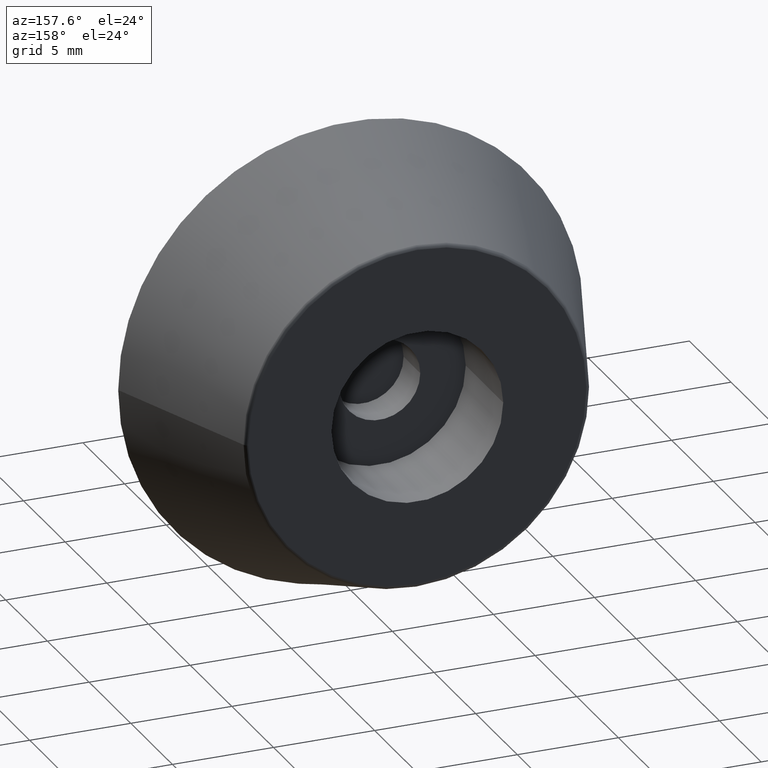
[diagram: clean part render]
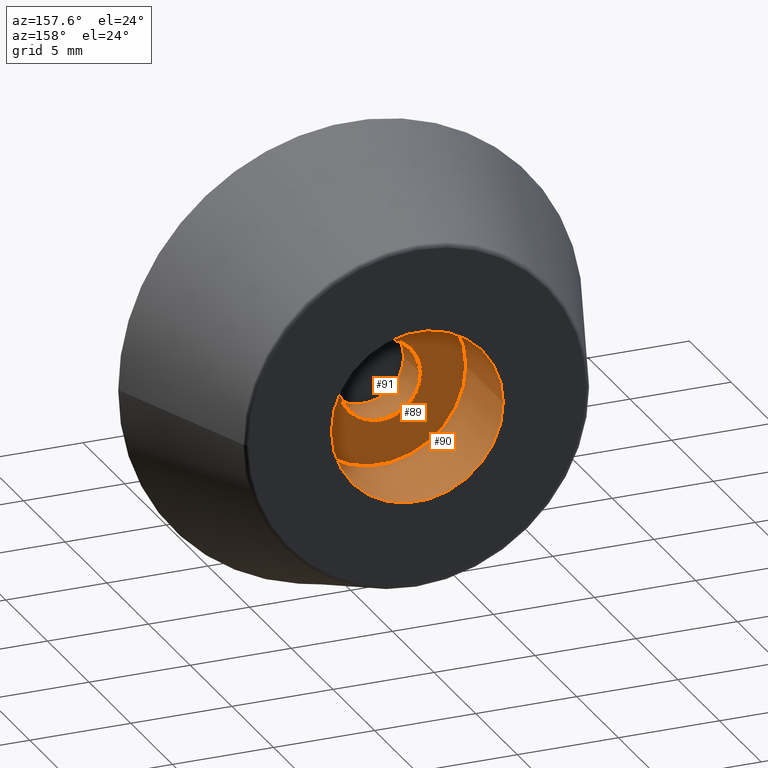
[diagram: same view with one multi-face feature highlighted, each face labeled with its STEP entity id]
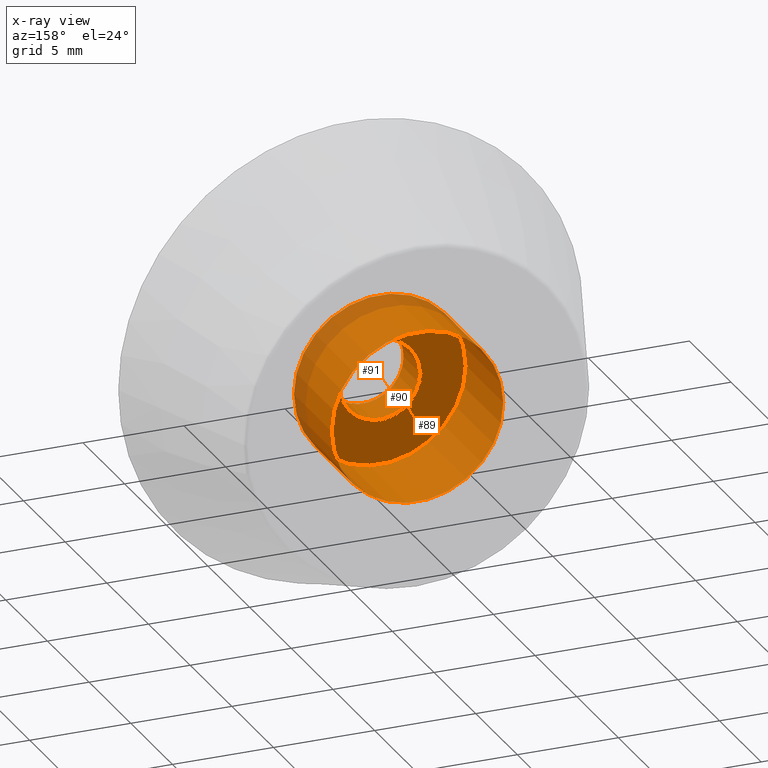
[diagram: x-ray of the same camera — body ghosted, the whole feature saturated]
A machine part, auxiliary view. The highlighted faces form ONE feature: a stepped (counterbored) hole: 2 coaxial cylindrical walls of radii 2 -> 4.25 mm joined by 1 annular planar shoulder face(s). The faces share edges in the B-rep.
The next image is the same camera in x-ray: the body ghosted and the whole hole feature saturated, so the bore chain is visible through the body.
Their STEP definitions:
[1] entity #90 (Cylinder):
#15=CYLINDRICAL_SURFACE('',#106,4.25);
#26=FACE_BOUND('',#45,.T.);
#32=FACE_OUTER_BOUND('',#44,.T.);
#44=EDGE_LOOP('',(#79));
#45=EDGE_LOOP('',(#80));
#52=CIRCLE('',#100,4.25);
#54=CIRCLE('',#104,4.25);
#59=VERTEX_POINT('',#150);
#61=VERTEX_POINT('',#156);
#66=EDGE_CURVE('',#59,#59,#52,.T.);
#68=EDGE_CURVE('',#61,#61,#54,.T.);
#79=ORIENTED_EDGE('',*,*,#66,.F.);
#80=ORIENTED_EDGE('',*,*,#68,.F.);
#90=ADVANCED_FACE('',(#32,#26),#15,.F.);
#100=AXIS2_PLACEMENT_3D('',#151,#121,#122);
#104=AXIS2_PLACEMENT_3D('',#157,#129,#130);
#106=AXIS2_PLACEMENT_3D('',#160,#133,#134);
#121=DIRECTION('center_axis',(0.,-1.,0.));
#122=DIRECTION('ref_axis',(-1.,0.,0.));
#129=DIRECTION('center_axis',(0.,1.,0.));
#130=DIRECTION('ref_axis',(-1.,0.,0.));
#133=DIRECTION('center_axis',(0.,1.,0.));
#134=DIRECTION('ref_axis',(-1.,0.,0.));
#150=CARTESIAN_POINT('',(-4.25,8.,0.));
#151=CARTESIAN_POINT('Origin',(0.,8.,0.));
#156=CARTESIAN_POINT('',(-4.25,3.5,0.));
#157=CARTESIAN_POINT('Origin',(0.,3.5,0.));
#160=CARTESIAN_POINT('Origin',(0.,5.75,0.));
[2] entity #91 (Cylinder):
#16=CYLINDRICAL_SURFACE('',#107,2.);
#27=FACE_BOUND('',#47,.T.);
#33=FACE_OUTER_BOUND('',#46,.T.);
#46=EDGE_LOOP('',(#81));
#47=EDGE_LOOP('',(#82));
#55=CIRCLE('',#105,2.);
#56=CIRCLE('',#108,2.);
#62=VERTEX_POINT('',#158);
#63=VERTEX_POINT('',#162);
#69=EDGE_CURVE('',#62,#62,#55,.T.);
#70=EDGE_CURVE('',#63,#63,#56,.T.);
#81=ORIENTED_EDGE('',*,*,#69,.T.);
#82=ORIENTED_EDGE('',*,*,#70,.F.);
#91=ADVANCED_FACE('',(#33,#27),#16,.F.);
#105=AXIS2_PLACEMENT_3D('',#159,#131,#132);
#107=AXIS2_PLACEMENT_3D('',#161,#135,#136);
#108=AXIS2_PLACEMENT_3D('',#163,#137,#138);
#131=DIRECTION('center_axis',(0.,1.,0.));
#132=DIRECTION('ref_axis',(-1.,0.,0.));
#135=DIRECTION('center_axis',(0.,1.,0.));
#136=DIRECTION('ref_axis',(-1.,0.,0.));
#137=DIRECTION('center_axis',(0.,1.,0.));
#138=DIRECTION('ref_axis',(-1.,0.,0.));
#158=CARTESIAN_POINT('',(2.,3.5,-2.44929359829471E-16));
#159=CARTESIAN_POINT('Origin',(0.,3.5,0.));
#161=CARTESIAN_POINT('Origin',(0.,4.75,0.));
#162=CARTESIAN_POINT('',(-2.,1.5,0.));
#163=CARTESIAN_POINT('Origin',(0.,1.5,0.));
[3] entity #89 (Plane):
#19=PLANE('',#103);
#25=FACE_BOUND('',#43,.T.);
#31=FACE_OUTER_BOUND('',#42,.T.);
#42=EDGE_LOOP('',(#77));
#43=EDGE_LOOP('',(#78));
#54=CIRCLE('',#104,4.25);
#55=CIRCLE('',#105,2.);
#61=VERTEX_POINT('',#156);
#62=VERTEX_POINT('',#158);
#68=EDGE_CURVE('',#61,#61,#54,.T.);
#69=EDGE_CURVE('',#62,#62,#55,.T.);
#77=ORIENTED_EDGE('',*,*,#68,.T.);
#78=ORIENTED_EDGE('',*,*,#69,.F.);
#89=ADVANCED_FACE('',(#31,#25),#19,.T.);
#103=AXIS2_PLACEMENT_3D('',#155,#127,#128);
#104=AXIS2_PLACEMENT_3D('',#157,#129,#130);
#105=AXIS2_PLACEMENT_3D('',#159,#131,#132);
#127=DIRECTION('center_axis',(0.,1.,0.));
#128=DIRECTION('ref_axis',(-1.,0.,0.));
#129=DIRECTION('center_axis',(0.,1.,0.));
#130=DIRECTION('ref_axis',(-1.,0.,0.));
#131=DIRECTION('center_axis',(0.,1.,0.));
#132=DIRECTION('ref_axis',(-1.,0.,0.));
#155=CARTESIAN_POINT('Origin',(0.,3.5,0.));
#156=CARTESIAN_POINT('',(-4.25,3.5,0.));
#157=CARTESIAN_POINT('Origin',(0.,3.5,0.));
#158=CARTESIAN_POINT('',(2.,3.5,-2.44929359829471E-16));
#159=CARTESIAN_POINT('Origin',(0.,3.5,0.));